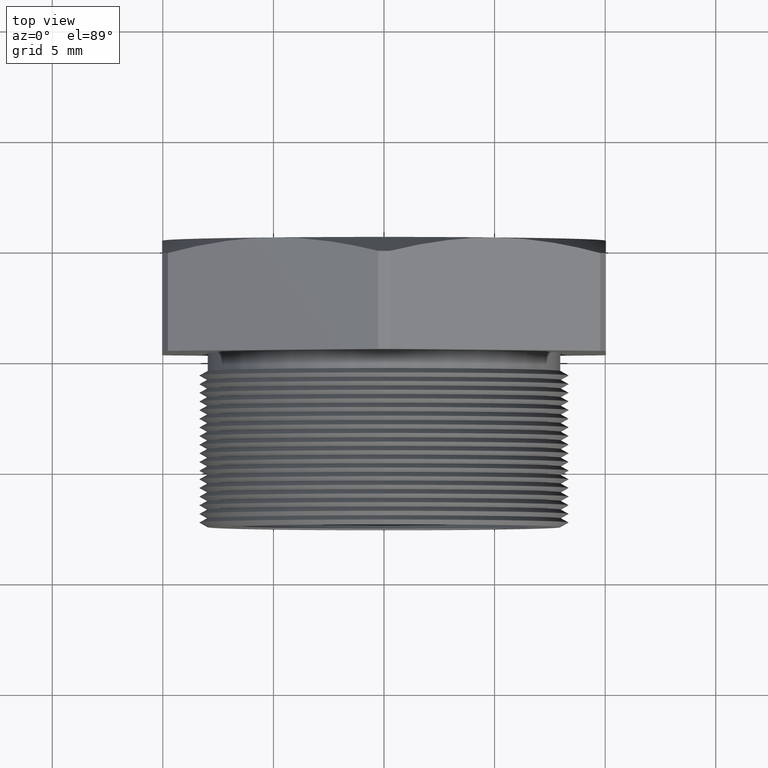
[diagram: clean part render]
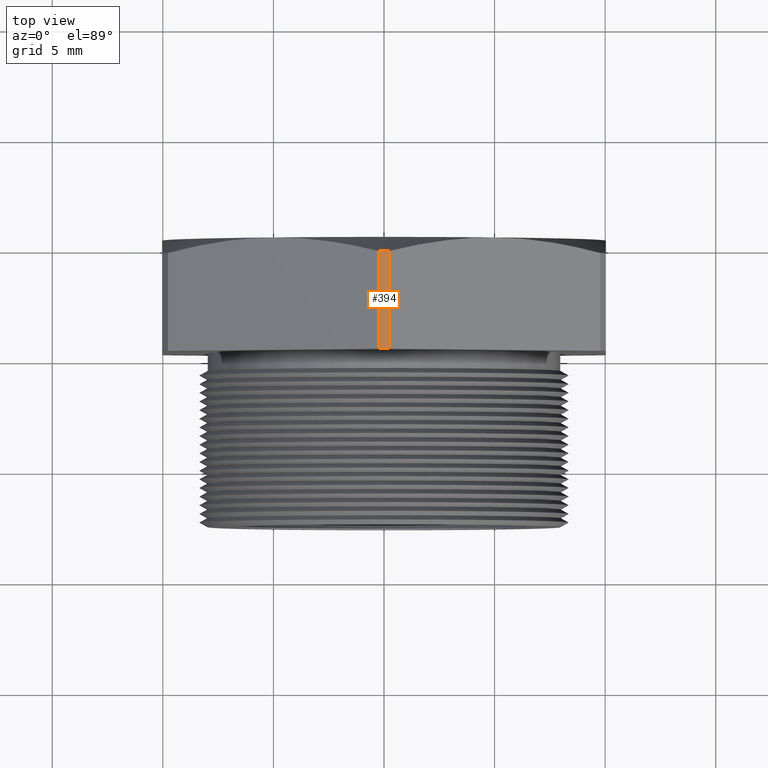
[diagram: same view with one face highlighted and labeled with its STEP entity id]
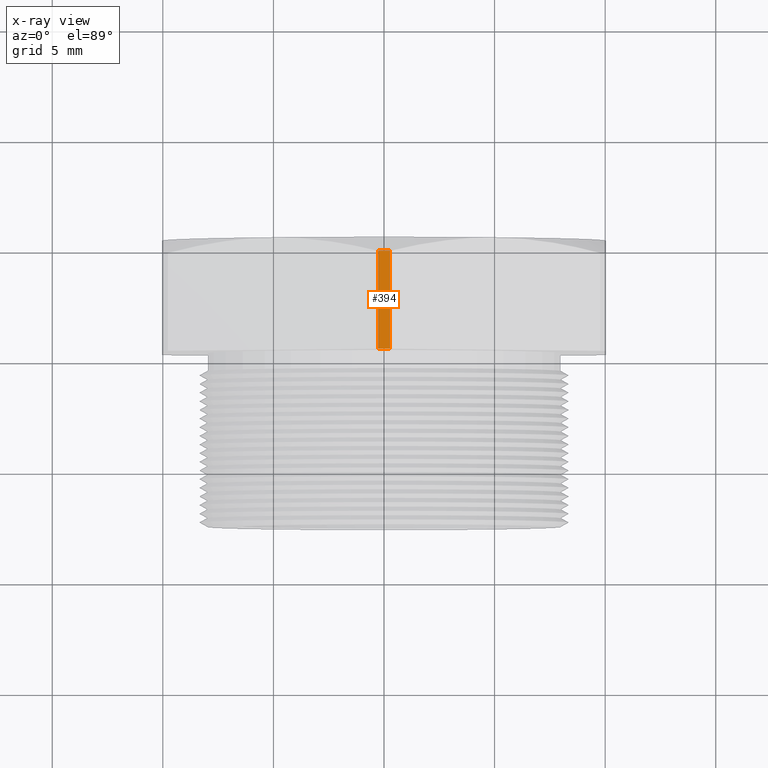
[diagram: x-ray of the same camera — body ghosted, the highlighted face saturated]
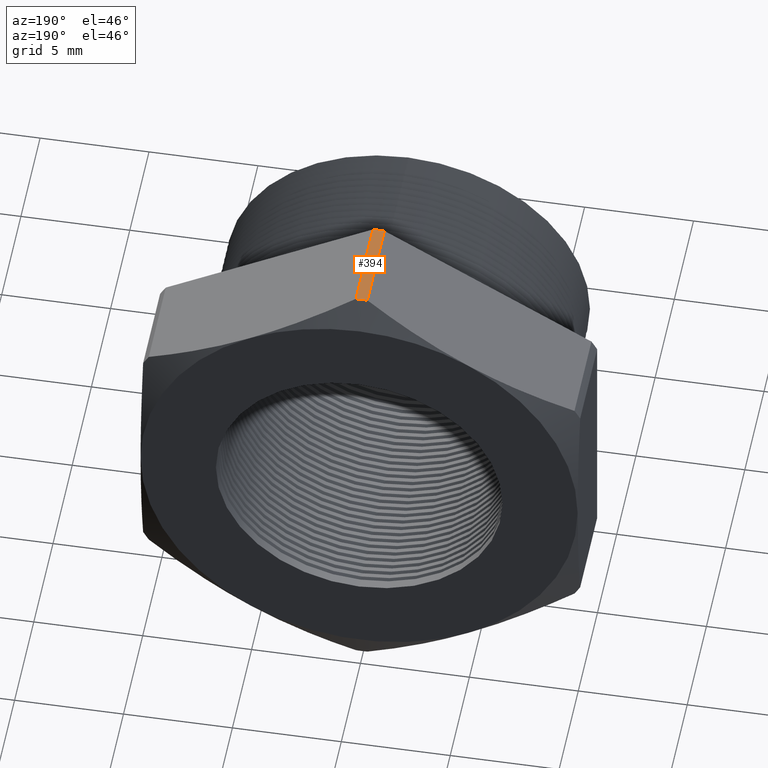
[diagram: same view with one face highlighted and labeled with its STEP entity id]
A machine part, top view. The second image highlights one B-rep face of the part: STEP entity #394.
The next image is the same camera in x-ray: the body ghosted, the highlighted face saturated — about 0% of this face is hidden behind the body in this view.
A second angle (auxiliary view) of the same face is appended — the face is thin or edge-on in the first view.
In plain terms, the highlighted cylindrical surface (partial cylindrical patch) has radius 11.4376 mm, axis along (-0, -1, -0).
Its self-contained STEP definition (entity closure, byte-faithful):
#375 = EDGE_LOOP ( 'NONE', ( #569, #595, #602, #588, #579 ) ) ;
#394 = ADVANCED_FACE ( 'NONE', ( #2283 ), #2280, .T. ) ;
#569 = ORIENTED_EDGE ( 'NONE', *, *, #593, .T. ) ;
#579 = ORIENTED_EDGE ( 'NONE', *, *, #583, .F. ) ;
#583 = EDGE_CURVE ( 'NONE', #599, #586, #2618, .T. ) ;
#586 = VERTEX_POINT ( 'NONE', #2609 ) ;
#588 = ORIENTED_EDGE ( 'NONE', *, *, #589, .T. ) ;
#589 = EDGE_CURVE ( 'NONE', #590, #586, #2604, .T. ) ;
#590 = VERTEX_POINT ( 'NONE', #2600 ) ;
#593 = EDGE_CURVE ( 'NONE', #599, #6936, #2657, .T. ) ;
#594 = EDGE_CURVE ( 'NONE', #6921, #590, #2653, .T. ) ;
#595 = ORIENTED_EDGE ( 'NONE', *, *, #6871, .T. ) ;
#599 = VERTEX_POINT ( 'NONE', #2638 ) ;
#602 = ORIENTED_EDGE ( 'NONE', *, *, #594, .T. ) ;
#2276 = DIRECTION ( 'NONE',  ( 0.0000000000000000000, 0.0000000000000000000, -1.000000000000000000 ) ) ;
#2277 = DIRECTION ( 'NONE',  ( -0.0000000000000000000, -1.000000000000000000, -0.0000000000000000000 ) ) ;
#2278 = CARTESIAN_POINT ( 'NONE',  ( 0.0000000000000000000, 0.0000000000000000000, 0.0000000000000000000 ) ) ;
#2279 = AXIS2_PLACEMENT_3D ( 'NONE', #2278, #2277, #2276 ) ;
#2280 = CYLINDRICAL_SURFACE ( 'NONE', #2279, 0.4502999999999999800 ) ;
#2283 = FACE_OUTER_BOUND ( 'NONE', #375, .T. ) ;
#2600 = CARTESIAN_POINT ( 'NONE',  ( -0.01026000026703713400, 0.3817680770869766300, 0.4501830987437449600 ) ) ;
#2601 = DIRECTION ( 'NONE',  ( -0.0000000000000000000, -1.000000000000000000, -0.0000000000000000000 ) ) ;
#2602 = VECTOR ( 'NONE', #2601, 39.37007874015748100 ) ;
#2603 = CARTESIAN_POINT ( 'NONE',  ( -0.01026000026703716000, 0.0000000000000000000, 0.4501830987437447900 ) ) ;
#2604 = LINE ( 'NONE', #2603, #2602 ) ;
#2609 = CARTESIAN_POINT ( 'NONE',  ( -0.01026000026703707000, 0.2075548905829479300, 0.4501830987437449600 ) ) ;
#2610 = DIRECTION ( 'NONE',  ( 0.0000000000000000000, 0.0000000000000000000, -1.000000000000000000 ) ) ;
#2612 = DIRECTION ( 'NONE',  ( -0.0000000000000000000, -1.000000000000000000, -0.0000000000000000000 ) ) ;
#2613 = CARTESIAN_POINT ( 'NONE',  ( 0.0000000000000000000, 0.2075548905829479300, 0.0000000000000000000 ) ) ;
#2614 = AXIS2_PLACEMENT_3D ( 'NONE', #2613, #2612, #2610 ) ;
#2618 = CIRCLE ( 'NONE', #2614, 0.4502999999999999800 ) ;
#2638 = CARTESIAN_POINT ( 'NONE',  ( 0.01026000026703712500, 0.2075548905829479300, 0.4501830987437449000 ) ) ;
#2649 = DIRECTION ( 'NONE',  ( 0.0000000000000000000, 0.0000000000000000000, -1.000000000000000000 ) ) ;
#2650 = DIRECTION ( 'NONE',  ( 0.0000000000000000000, -1.000000000000000000, 0.0000000000000000000 ) ) ;
#2651 = CARTESIAN_POINT ( 'NONE',  ( 0.0000000000000000000, 0.3817680770869766300, 0.0000000000000000000 ) ) ;
#2652 = AXIS2_PLACEMENT_3D ( 'NONE', #2651, #2650, #2649 ) ;
#2653 = CIRCLE ( 'NONE', #2652, 0.4502999999999999800 ) ;
#2654 = DIRECTION ( 'NONE',  ( 0.0000000000000000000, 1.000000000000000000, 0.0000000000000000000 ) ) ;
#2655 = VECTOR ( 'NONE', #2654, 39.37007874015748100 ) ;
#2656 = CARTESIAN_POINT ( 'NONE',  ( 0.01026000026703712500, 0.0000000000000000000, 0.4501830987437449000 ) ) ;
#2657 = LINE ( 'NONE', #2656, #2655 ) ;
#5256 = CARTESIAN_POINT ( 'NONE',  ( 0.0000000000000000000, 0.3817680770869766300, 0.0000000000000000000 ) ) ;
#5257 = AXIS2_PLACEMENT_3D ( 'NONE', #5256, #5316, #5315 ) ;
#5258 = CIRCLE ( 'NONE', #5257, 0.4502999999999999800 ) ;
#5315 = DIRECTION ( 'NONE',  ( 0.0000000000000000000, 0.0000000000000000000, -1.000000000000000000 ) ) ;
#5316 = DIRECTION ( 'NONE',  ( 0.0000000000000000000, -1.000000000000000000, 0.0000000000000000000 ) ) ;
#5405 = CARTESIAN_POINT ( 'NONE',  ( 0.0000000000000000000, 0.3817680770869766300, 0.4502999999999999800 ) ) ;
#5426 = CARTESIAN_POINT ( 'NONE',  ( 0.01026000026703714400, 0.3817680770869766300, 0.4501830987437449600 ) ) ;
#6871 = EDGE_CURVE ( 'NONE', #6936, #6921, #5258, .T. ) ;
#6921 = VERTEX_POINT ( 'NONE', #5405 ) ;
#6936 = VERTEX_POINT ( 'NONE', #5426 ) ;